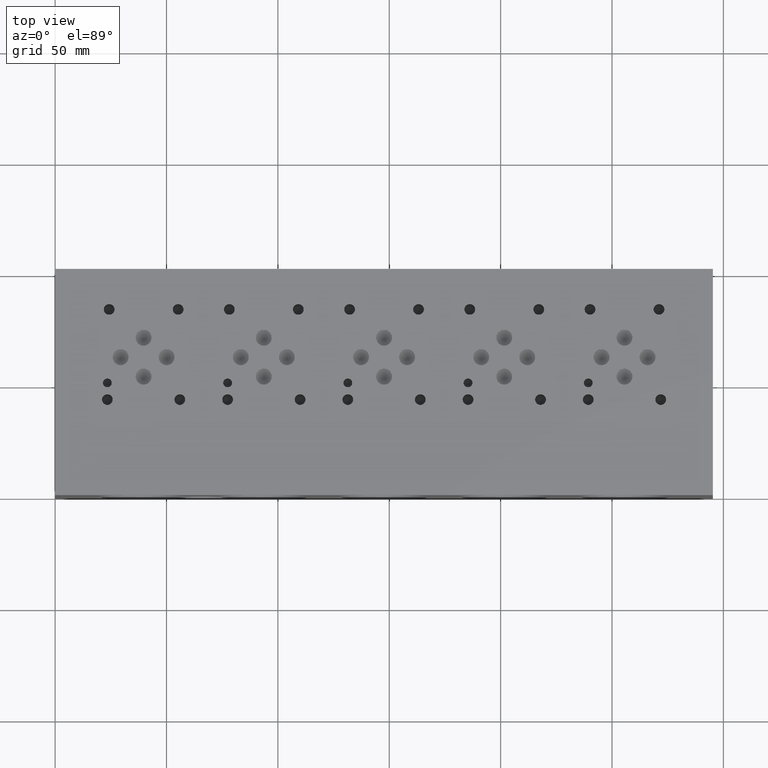
[diagram: clean part render]
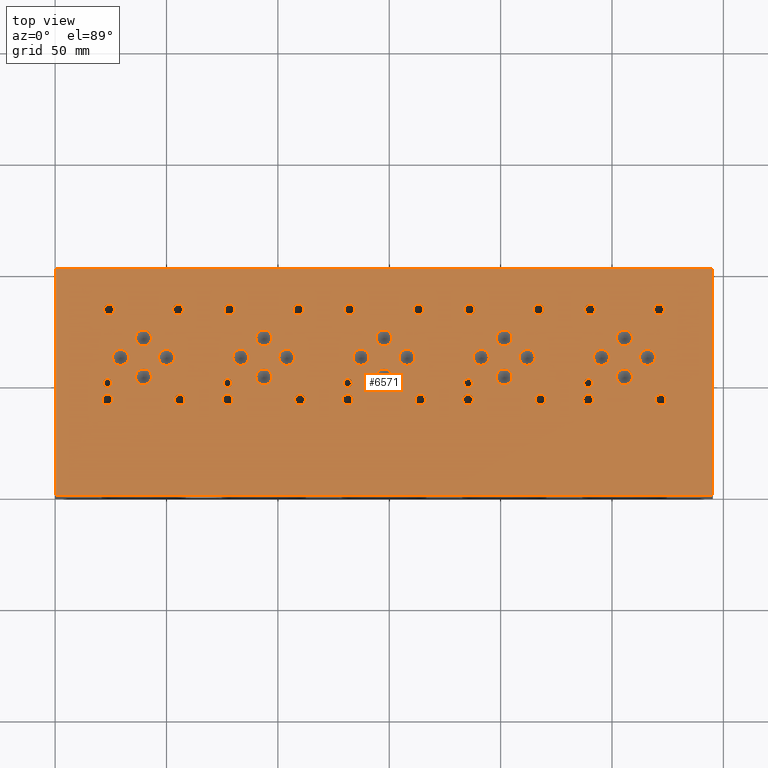
[diagram: same view with one face highlighted and labeled with its STEP entity id]
A machine part, top view. The second image highlights one B-rep face of the part: STEP entity #6571.
In plain terms, the highlighted planar face has unit normal (0, 0, 1).
Its self-contained STEP definition (entity closure, byte-faithful):
#564=CARTESIAN_POINT('',(242.51920000000001,83.337400000000002,101.59999999999999));
#565=VERTEX_POINT('',#564);
#566=CARTESIAN_POINT('',(240.10620000000003,83.337400000000002,101.59999999999999));
#567=DIRECTION('',(0.0,0.0,-1.0));
#568=DIRECTION('',(1.0,0.0,0.0));
#569=AXIS2_PLACEMENT_3D('',#566,#567,#568);
#570=CIRCLE('',#569,2.41299999999999);
#571=EDGE_CURVE('',#565,#565,#570,.T.);
#641=CARTESIAN_POINT('',(273.48180000000002,83.337400000000002,101.59999999999999));
#642=VERTEX_POINT('',#641);
#643=CARTESIAN_POINT('',(271.06880000000001,83.337400000000002,101.59999999999999));
#644=DIRECTION('',(0.0,0.0,-1.0));
#645=DIRECTION('',(1.0,0.0,0.0));
#646=AXIS2_PLACEMENT_3D('',#643,#644,#645);
#647=CIRCLE('',#646,2.41299999999999);
#648=EDGE_CURVE('',#642,#642,#647,.T.);
#718=CARTESIAN_POINT('',(274.26920000000001,42.849800000000002,101.59999999999999));
#719=VERTEX_POINT('',#718);
#720=CARTESIAN_POINT('',(271.8562,42.849800000000002,101.59999999999999));
#721=DIRECTION('',(0.0,0.0,-1.0));
#722=DIRECTION('',(1.0,0.0,0.0));
#723=AXIS2_PLACEMENT_3D('',#720,#721,#722);
#724=CIRCLE('',#723,2.41299999999999);
#725=EDGE_CURVE('',#719,#719,#724,.T.);
#795=CARTESIAN_POINT('',(241.73180000000002,42.849800000000002,101.59999999999999));
#796=VERTEX_POINT('',#795);
#797=CARTESIAN_POINT('',(239.31880000000004,42.849800000000002,101.59999999999999));
#798=DIRECTION('',(0.0,0.0,-1.0));
#799=DIRECTION('',(1.0,0.0,0.0));
#800=AXIS2_PLACEMENT_3D('',#797,#798,#799);
#801=CIRCLE('',#800,2.41299999999999);
#802=EDGE_CURVE('',#796,#796,#801,.T.);
#832=CARTESIAN_POINT('',(241.30000000000001,50.342799999999997,101.59999999999999));
#833=VERTEX_POINT('',#832);
#834=CARTESIAN_POINT('',(239.31880000000004,50.342799999999997,101.59999999999999));
#835=DIRECTION('',(0.0,0.0,-1.0));
#836=DIRECTION('',(1.0,0.0,0.0));
#837=AXIS2_PLACEMENT_3D('',#834,#835,#836);
#838=CIRCLE('',#837,1.981199999999994);
#839=EDGE_CURVE('',#833,#833,#838,.T.);
#869=CARTESIAN_POINT('',(259.14350000000002,53.162200000000006,101.59999999999999));
#870=VERTEX_POINT('',#869);
#871=CARTESIAN_POINT('',(255.57480000000001,53.162200000000006,101.59999999999999));
#872=DIRECTION('',(0.0,0.0,-1.0));
#873=DIRECTION('',(1.0,0.0,0.0));
#874=AXIS2_PLACEMENT_3D('',#871,#872,#873);
#875=CIRCLE('',#874,3.568700000000007);
#876=EDGE_CURVE('',#870,#870,#875,.T.);
#906=CARTESIAN_POINT('',(259.14350000000002,70.6374,101.59999999999999));
#907=VERTEX_POINT('',#906);
#908=CARTESIAN_POINT('',(255.57480000000001,70.6374,101.59999999999999));
#909=DIRECTION('',(0.0,0.0,-1.0));
#910=DIRECTION('',(1.0,0.0,0.0));
#911=AXIS2_PLACEMENT_3D('',#908,#909,#910);
#912=CIRCLE('',#911,3.568700000000007);
#913=EDGE_CURVE('',#907,#907,#912,.T.);
#943=CARTESIAN_POINT('',(269.48130000000003,61.899799999999999,101.59999999999999));
#944=VERTEX_POINT('',#943);
#945=CARTESIAN_POINT('',(265.9126,61.899799999999999,101.59999999999999));
#946=DIRECTION('',(0.0,0.0,-1.0));
#947=DIRECTION('',(1.0,0.0,0.0));
#948=AXIS2_PLACEMENT_3D('',#945,#946,#947);
#949=CIRCLE('',#948,3.568700000000007);
#950=EDGE_CURVE('',#944,#944,#949,.T.);
#980=CARTESIAN_POINT('',(248.83110000000002,61.899799999999999,101.59999999999999));
#981=VERTEX_POINT('',#980);
#982=CARTESIAN_POINT('',(245.26240000000001,61.899799999999999,101.59999999999999));
#983=DIRECTION('',(0.0,0.0,-1.0));
#984=DIRECTION('',(1.0,0.0,0.0));
#985=AXIS2_PLACEMENT_3D('',#982,#983,#984);
#986=CIRCLE('',#985,3.568700000000007);
#987=EDGE_CURVE('',#981,#981,#986,.T.);
#1491=CARTESIAN_POINT('',(188.54420000000002,83.337400000000002,101.59999999999999));
#1492=VERTEX_POINT('',#1491);
#1493=CARTESIAN_POINT('',(186.13120000000004,83.337400000000002,101.59999999999999));
#1494=DIRECTION('',(0.0,0.0,-1.0));
#1495=DIRECTION('',(1.0,0.0,0.0));
#1496=AXIS2_PLACEMENT_3D('',#1493,#1494,#1495);
#1497=CIRCLE('',#1496,2.41299999999999);
#1498=EDGE_CURVE('',#1492,#1492,#1497,.T.);
#1568=CARTESIAN_POINT('',(219.5068,83.337400000000002,101.59999999999999));
#1569=VERTEX_POINT('',#1568);
#1570=CARTESIAN_POINT('',(217.09379999999999,83.337400000000002,101.59999999999999));
#1571=DIRECTION('',(0.0,0.0,-1.0));
#1572=DIRECTION('',(1.0,0.0,0.0));
#1573=AXIS2_PLACEMENT_3D('',#1570,#1571,#1572);
#1574=CIRCLE('',#1573,2.41299999999999);
#1575=EDGE_CURVE('',#1569,#1569,#1574,.T.);
#1645=CARTESIAN_POINT('',(220.29420000000002,42.849800000000002,101.59999999999999));
#1646=VERTEX_POINT('',#1645);
#1647=CARTESIAN_POINT('',(217.88120000000004,42.849800000000002,101.59999999999999));
#1648=DIRECTION('',(0.0,0.0,-1.0));
#1649=DIRECTION('',(1.0,0.0,0.0));
#1650=AXIS2_PLACEMENT_3D('',#1647,#1648,#1649);
#1651=CIRCLE('',#1650,2.41299999999999);
#1652=EDGE_CURVE('',#1646,#1646,#1651,.T.);
#1722=CARTESIAN_POINT('',(187.75679999999997,42.849800000000002,101.59999999999999));
#1723=VERTEX_POINT('',#1722);
#1724=CARTESIAN_POINT('',(185.34379999999999,42.849800000000002,101.59999999999999));
#1725=DIRECTION('',(0.0,0.0,-1.0));
#1726=DIRECTION('',(1.0,0.0,0.0));
#1727=AXIS2_PLACEMENT_3D('',#1724,#1725,#1726);
#1728=CIRCLE('',#1727,2.41299999999999);
#1729=EDGE_CURVE('',#1723,#1723,#1728,.T.);
#1759=CARTESIAN_POINT('',(187.32499999999999,50.342799999999997,101.59999999999999));
#1760=VERTEX_POINT('',#1759);
#1761=CARTESIAN_POINT('',(185.34379999999999,50.342799999999997,101.59999999999999));
#1762=DIRECTION('',(0.0,0.0,-1.0));
#1763=DIRECTION('',(1.0,0.0,0.0));
#1764=AXIS2_PLACEMENT_3D('',#1761,#1762,#1763);
#1765=CIRCLE('',#1764,1.981199999999994);
#1766=EDGE_CURVE('',#1760,#1760,#1765,.T.);
#1796=CARTESIAN_POINT('',(205.16850000000002,53.162200000000006,101.59999999999999));
#1797=VERTEX_POINT('',#1796);
#1798=CARTESIAN_POINT('',(201.59980000000002,53.162200000000006,101.59999999999999));
#1799=DIRECTION('',(0.0,0.0,-1.0));
#1800=DIRECTION('',(1.0,0.0,0.0));
#1801=AXIS2_PLACEMENT_3D('',#1798,#1799,#1800);
#1802=CIRCLE('',#1801,3.568700000000007);
#1803=EDGE_CURVE('',#1797,#1797,#1802,.T.);
#1833=CARTESIAN_POINT('',(205.16850000000002,70.6374,101.59999999999999));
#1834=VERTEX_POINT('',#1833);
#1835=CARTESIAN_POINT('',(201.59980000000002,70.6374,101.59999999999999));
#1836=DIRECTION('',(0.0,0.0,-1.0));
#1837=DIRECTION('',(1.0,0.0,0.0));
#1838=AXIS2_PLACEMENT_3D('',#1835,#1836,#1837);
#1839=CIRCLE('',#1838,3.568700000000007);
#1840=EDGE_CURVE('',#1834,#1834,#1839,.T.);
#1870=CARTESIAN_POINT('',(215.50630000000001,61.899799999999999,101.59999999999999));
#1871=VERTEX_POINT('',#1870);
#1872=CARTESIAN_POINT('',(211.9376,61.899799999999999,101.59999999999999));
#1873=DIRECTION('',(0.0,0.0,-1.0));
#1874=DIRECTION('',(1.0,0.0,0.0));
#1875=AXIS2_PLACEMENT_3D('',#1872,#1873,#1874);
#1876=CIRCLE('',#1875,3.568700000000007);
#1877=EDGE_CURVE('',#1871,#1871,#1876,.T.);
#1907=CARTESIAN_POINT('',(194.85610000000003,61.899799999999999,101.59999999999999));
#1908=VERTEX_POINT('',#1907);
#1909=CARTESIAN_POINT('',(191.28739999999999,61.899799999999999,101.59999999999999));
#1910=DIRECTION('',(0.0,0.0,-1.0));
#1911=DIRECTION('',(1.0,0.0,0.0));
#1912=AXIS2_PLACEMENT_3D('',#1909,#1910,#1911);
#1913=CIRCLE('',#1912,3.568700000000007);
#1914=EDGE_CURVE('',#1908,#1908,#1913,.T.);
#2418=CARTESIAN_POINT('',(134.56920000000002,83.337400000000002,101.59999999999999));
#2419=VERTEX_POINT('',#2418);
#2420=CARTESIAN_POINT('',(132.15620000000001,83.337400000000002,101.59999999999999));
#2421=DIRECTION('',(0.0,0.0,-1.0));
#2422=DIRECTION('',(1.0,0.0,0.0));
#2423=AXIS2_PLACEMENT_3D('',#2420,#2421,#2422);
#2424=CIRCLE('',#2423,2.413000000000007);
#2425=EDGE_CURVE('',#2419,#2419,#2424,.T.);
#2495=CARTESIAN_POINT('',(165.53179999999998,83.337400000000002,101.59999999999999));
#2496=VERTEX_POINT('',#2495);
#2497=CARTESIAN_POINT('',(163.11879999999999,83.337400000000002,101.59999999999999));
#2498=DIRECTION('',(0.0,0.0,-1.0));
#2499=DIRECTION('',(1.0,0.0,0.0));
#2500=AXIS2_PLACEMENT_3D('',#2497,#2498,#2499);
#2501=CIRCLE('',#2500,2.41299999999999);
#2502=EDGE_CURVE('',#2496,#2496,#2501,.T.);
#2572=CARTESIAN_POINT('',(166.31920000000002,42.849800000000002,101.59999999999999));
#2573=VERTEX_POINT('',#2572);
#2574=CARTESIAN_POINT('',(163.90620000000001,42.849800000000002,101.59999999999999));
#2575=DIRECTION('',(0.0,0.0,-1.0));
#2576=DIRECTION('',(1.0,0.0,0.0));
#2577=AXIS2_PLACEMENT_3D('',#2574,#2575,#2576);
#2578=CIRCLE('',#2577,2.41299999999999);
#2579=EDGE_CURVE('',#2573,#2573,#2578,.T.);
#2649=CARTESIAN_POINT('',(133.7818,42.849800000000002,101.59999999999999));
#2650=VERTEX_POINT('',#2649);
#2651=CARTESIAN_POINT('',(131.36879999999999,42.849800000000002,101.59999999999999));
#2652=DIRECTION('',(0.0,0.0,-1.0));
#2653=DIRECTION('',(1.0,0.0,0.0));
#2654=AXIS2_PLACEMENT_3D('',#2651,#2652,#2653);
#2655=CIRCLE('',#2654,2.413000000000007);
#2656=EDGE_CURVE('',#2650,#2650,#2655,.T.);
#2686=CARTESIAN_POINT('',(133.34999999999999,50.342799999999997,101.59999999999999));
#2687=VERTEX_POINT('',#2686);
#2688=CARTESIAN_POINT('',(131.36879999999999,50.342799999999997,101.59999999999999));
#2689=DIRECTION('',(0.0,0.0,-1.0));
#2690=DIRECTION('',(1.0,0.0,0.0));
#2691=AXIS2_PLACEMENT_3D('',#2688,#2689,#2690);
#2692=CIRCLE('',#2691,1.981199999999994);
#2693=EDGE_CURVE('',#2687,#2687,#2692,.T.);
#2723=CARTESIAN_POINT('',(151.1935,53.162200000000006,101.59999999999999));
#2724=VERTEX_POINT('',#2723);
#2725=CARTESIAN_POINT('',(147.62479999999999,53.162200000000006,101.59999999999999));
#2726=DIRECTION('',(0.0,0.0,-1.0));
#2727=DIRECTION('',(1.0,0.0,0.0));
#2728=AXIS2_PLACEMENT_3D('',#2725,#2726,#2727);
#2729=CIRCLE('',#2728,3.568700000000007);
#2730=EDGE_CURVE('',#2724,#2724,#2729,.T.);
#2760=CARTESIAN_POINT('',(151.1935,70.6374,101.59999999999999));
#2761=VERTEX_POINT('',#2760);
#2762=CARTESIAN_POINT('',(147.62479999999999,70.6374,101.59999999999999));
#2763=DIRECTION('',(0.0,0.0,-1.0));
#2764=DIRECTION('',(1.0,0.0,0.0));
#2765=AXIS2_PLACEMENT_3D('',#2762,#2763,#2764);
#2766=CIRCLE('',#2765,3.568700000000007);
#2767=EDGE_CURVE('',#2761,#2761,#2766,.T.);
#2797=CARTESIAN_POINT('',(161.53130000000002,61.899799999999999,101.59999999999999));
#2798=VERTEX_POINT('',#2797);
#2799=CARTESIAN_POINT('',(157.96260000000001,61.899799999999999,101.59999999999999));
#2800=DIRECTION('',(0.0,0.0,-1.0));
#2801=DIRECTION('',(1.0,0.0,0.0));
#2802=AXIS2_PLACEMENT_3D('',#2799,#2800,#2801);
#2803=CIRCLE('',#2802,3.568699999999989);
#2804=EDGE_CURVE('',#2798,#2798,#2803,.T.);
#2834=CARTESIAN_POINT('',(140.8811,61.899799999999999,101.59999999999999));
#2835=VERTEX_POINT('',#2834);
#2836=CARTESIAN_POINT('',(137.3124,61.899799999999999,101.59999999999999));
#2837=DIRECTION('',(0.0,0.0,-1.0));
#2838=DIRECTION('',(1.0,0.0,0.0));
#2839=AXIS2_PLACEMENT_3D('',#2836,#2837,#2838);
#2840=CIRCLE('',#2839,3.568700000000007);
#2841=EDGE_CURVE('',#2835,#2835,#2840,.T.);
#5305=CARTESIAN_POINT('',(80.594200000000015,83.337400000000002,101.59999999999999));
#5306=VERTEX_POINT('',#5305);
#5307=CARTESIAN_POINT('',(78.181200000000004,83.337400000000002,101.59999999999999));
#5308=DIRECTION('',(0.0,0.0,-1.0));
#5309=DIRECTION('',(1.0,0.0,0.0));
#5310=AXIS2_PLACEMENT_3D('',#5307,#5308,#5309);
#5311=CIRCLE('',#5310,2.413000000000007);
#5312=EDGE_CURVE('',#5306,#5306,#5311,.T.);
#5382=CARTESIAN_POINT('',(111.55680000000002,83.337400000000002,101.59999999999999));
#5383=VERTEX_POINT('',#5382);
#5384=CARTESIAN_POINT('',(109.14380000000001,83.337400000000002,101.59999999999999));
#5385=DIRECTION('',(0.0,0.0,-1.0));
#5386=DIRECTION('',(1.0,0.0,0.0));
#5387=AXIS2_PLACEMENT_3D('',#5384,#5385,#5386);
#5388=CIRCLE('',#5387,2.413000000000007);
#5389=EDGE_CURVE('',#5383,#5383,#5388,.T.);
#5459=CARTESIAN_POINT('',(112.34420000000001,42.849800000000002,101.59999999999999));
#5460=VERTEX_POINT('',#5459);
#5461=CARTESIAN_POINT('',(109.93120000000002,42.849800000000002,101.59999999999999));
#5462=DIRECTION('',(0.0,0.0,-1.0));
#5463=DIRECTION('',(1.0,0.0,0.0));
#5464=AXIS2_PLACEMENT_3D('',#5461,#5462,#5463);
#5465=CIRCLE('',#5464,2.413000000000007);
#5466=EDGE_CURVE('',#5460,#5460,#5465,.T.);
#5536=CARTESIAN_POINT('',(79.80680000000001,42.849800000000002,101.59999999999999));
#5537=VERTEX_POINT('',#5536);
#5538=CARTESIAN_POINT('',(77.393799999999999,42.849800000000002,101.59999999999999));
#5539=DIRECTION('',(0.0,0.0,-1.0));
#5540=DIRECTION('',(1.0,0.0,0.0));
#5541=AXIS2_PLACEMENT_3D('',#5538,#5539,#5540);
#5542=CIRCLE('',#5541,2.412999999999999);
#5543=EDGE_CURVE('',#5537,#5537,#5542,.T.);
#5573=CARTESIAN_POINT('',(79.375000000000014,50.342799999999997,101.59999999999999));
#5574=VERTEX_POINT('',#5573);
#5575=CARTESIAN_POINT('',(77.393799999999999,50.342799999999997,101.59999999999999));
#5576=DIRECTION('',(0.0,0.0,-1.0));
#5577=DIRECTION('',(1.0,0.0,0.0));
#5578=AXIS2_PLACEMENT_3D('',#5575,#5576,#5577);
#5579=CIRCLE('',#5578,1.981200000000003);
#5580=EDGE_CURVE('',#5574,#5574,#5579,.T.);
#5610=CARTESIAN_POINT('',(97.21850000000002,53.162200000000006,101.59999999999999));
#5611=VERTEX_POINT('',#5610);
#5612=CARTESIAN_POINT('',(93.649800000000013,53.162200000000006,101.59999999999999));
#5613=DIRECTION('',(0.0,0.0,-1.0));
#5614=DIRECTION('',(1.0,0.0,0.0));
#5615=AXIS2_PLACEMENT_3D('',#5612,#5613,#5614);
#5616=CIRCLE('',#5615,3.568700000000007);
#5617=EDGE_CURVE('',#5611,#5611,#5616,.T.);
#5647=CARTESIAN_POINT('',(97.21850000000002,70.6374,101.59999999999999));
#5648=VERTEX_POINT('',#5647);
#5649=CARTESIAN_POINT('',(93.649800000000013,70.6374,101.59999999999999));
#5650=DIRECTION('',(0.0,0.0,-1.0));
#5651=DIRECTION('',(1.0,0.0,0.0));
#5652=AXIS2_PLACEMENT_3D('',#5649,#5650,#5651);
#5653=CIRCLE('',#5652,3.568700000000007);
#5654=EDGE_CURVE('',#5648,#5648,#5653,.T.);
#5684=CARTESIAN_POINT('',(107.55630000000002,61.899799999999999,101.59999999999999));
#5685=VERTEX_POINT('',#5684);
#5686=CARTESIAN_POINT('',(103.98760000000001,61.899799999999999,101.59999999999999));
#5687=DIRECTION('',(0.0,0.0,-1.0));
#5688=DIRECTION('',(1.0,0.0,0.0));
#5689=AXIS2_PLACEMENT_3D('',#5686,#5687,#5688);
#5690=CIRCLE('',#5689,3.568700000000007);
#5691=EDGE_CURVE('',#5685,#5685,#5690,.T.);
#5721=CARTESIAN_POINT('',(86.906100000000009,61.899799999999999,101.59999999999999));
#5722=VERTEX_POINT('',#5721);
#5723=CARTESIAN_POINT('',(83.337400000000002,61.899799999999999,101.59999999999999));
#5724=DIRECTION('',(0.0,0.0,-1.0));
#5725=DIRECTION('',(1.0,0.0,0.0));
#5726=AXIS2_PLACEMENT_3D('',#5723,#5724,#5725);
#5727=CIRCLE('',#5726,3.568700000000007);
#5728=EDGE_CURVE('',#5722,#5722,#5727,.T.);
#5798=CARTESIAN_POINT('',(26.619199999999999,83.337400000000002,101.59999999999999));
#5799=VERTEX_POINT('',#5798);
#5800=CARTESIAN_POINT('',(24.206199999999999,83.337400000000002,101.59999999999999));
#5801=DIRECTION('',(0.0,0.0,-1.0));
#5802=DIRECTION('',(1.0,0.0,0.0));
#5803=AXIS2_PLACEMENT_3D('',#5800,#5801,#5802);
#5804=CIRCLE('',#5803,2.412999999999999);
#5805=EDGE_CURVE('',#5799,#5799,#5804,.T.);
#5875=CARTESIAN_POINT('',(57.581800000000001,83.337400000000002,101.59999999999999));
#5876=VERTEX_POINT('',#5875);
#5877=CARTESIAN_POINT('',(55.168800000000005,83.337400000000002,101.59999999999999));
#5878=DIRECTION('',(0.0,0.0,-1.0));
#5879=DIRECTION('',(1.0,0.0,0.0));
#5880=AXIS2_PLACEMENT_3D('',#5877,#5878,#5879);
#5881=CIRCLE('',#5880,2.412999999999999);
#5882=EDGE_CURVE('',#5876,#5876,#5881,.T.);
#5952=CARTESIAN_POINT('',(58.369199999999999,42.849800000000002,101.59999999999999));
#5953=VERTEX_POINT('',#5952);
#5954=CARTESIAN_POINT('',(55.956200000000003,42.849800000000002,101.59999999999999));
#5955=DIRECTION('',(0.0,0.0,-1.0));
#5956=DIRECTION('',(1.0,0.0,0.0));
#5957=AXIS2_PLACEMENT_3D('',#5954,#5955,#5956);
#5958=CIRCLE('',#5957,2.412999999999999);
#5959=EDGE_CURVE('',#5953,#5953,#5958,.T.);
#6029=CARTESIAN_POINT('',(25.831800000000001,42.849800000000002,101.59999999999999));
#6030=VERTEX_POINT('',#6029);
#6031=CARTESIAN_POINT('',(23.418800000000001,42.849800000000002,101.59999999999999));
#6032=DIRECTION('',(0.0,0.0,-1.0));
#6033=DIRECTION('',(1.0,0.0,0.0));
#6034=AXIS2_PLACEMENT_3D('',#6031,#6032,#6033);
#6035=CIRCLE('',#6034,2.412999999999999);
#6036=EDGE_CURVE('',#6030,#6030,#6035,.T.);
#6066=CARTESIAN_POINT('',(25.399999999999999,50.342799999999997,101.59999999999999));
#6067=VERTEX_POINT('',#6066);
#6068=CARTESIAN_POINT('',(23.418800000000001,50.342799999999997,101.59999999999999));
#6069=DIRECTION('',(0.0,0.0,-1.0));
#6070=DIRECTION('',(1.0,0.0,0.0));
#6071=AXIS2_PLACEMENT_3D('',#6068,#6069,#6070);
#6072=CIRCLE('',#6071,1.981199999999999);
#6073=EDGE_CURVE('',#6067,#6067,#6072,.T.);
#6103=CARTESIAN_POINT('',(43.243499999999997,53.162200000000006,101.59999999999999));
#6104=VERTEX_POINT('',#6103);
#6105=CARTESIAN_POINT('',(39.674800000000005,53.162200000000006,101.59999999999999));
#6106=DIRECTION('',(0.0,0.0,-1.0));
#6107=DIRECTION('',(1.0,0.0,0.0));
#6108=AXIS2_PLACEMENT_3D('',#6105,#6106,#6107);
#6109=CIRCLE('',#6108,3.568699999999998);
#6110=EDGE_CURVE('',#6104,#6104,#6109,.T.);
#6140=CARTESIAN_POINT('',(43.243499999999997,70.6374,101.59999999999999));
#6141=VERTEX_POINT('',#6140);
#6142=CARTESIAN_POINT('',(39.674800000000005,70.6374,101.59999999999999));
#6143=DIRECTION('',(0.0,0.0,-1.0));
#6144=DIRECTION('',(1.0,0.0,0.0));
#6145=AXIS2_PLACEMENT_3D('',#6142,#6143,#6144);
#6146=CIRCLE('',#6145,3.568699999999998);
#6147=EDGE_CURVE('',#6141,#6141,#6146,.T.);
#6177=CARTESIAN_POINT('',(53.581299999999999,61.899799999999999,101.59999999999999));
#6178=VERTEX_POINT('',#6177);
#6179=CARTESIAN_POINT('',(50.012600000000006,61.899799999999999,101.59999999999999));
#6180=DIRECTION('',(0.0,0.0,-1.0));
#6181=DIRECTION('',(1.0,0.0,0.0));
#6182=AXIS2_PLACEMENT_3D('',#6179,#6180,#6181);
#6183=CIRCLE('',#6182,3.568699999999998);
#6184=EDGE_CURVE('',#6178,#6178,#6183,.T.);
#6214=CARTESIAN_POINT('',(32.931100000000001,61.899799999999999,101.59999999999999));
#6215=VERTEX_POINT('',#6214);
#6216=CARTESIAN_POINT('',(29.362400000000001,61.899799999999999,101.59999999999999));
#6217=DIRECTION('',(0.0,0.0,-1.0));
#6218=DIRECTION('',(1.0,0.0,0.0));
#6219=AXIS2_PLACEMENT_3D('',#6216,#6217,#6218);
#6220=CIRCLE('',#6219,3.568700000000002);
#6221=EDGE_CURVE('',#6215,#6215,#6220,.T.);
#6234=CARTESIAN_POINT('',(0.0,0.0,101.59999999999999));
#6235=VERTEX_POINT('',#6234);
#6236=CARTESIAN_POINT('',(0.0,101.59999999999999,101.59999999999999));
#6237=VERTEX_POINT('',#6236);
#6238=CARTESIAN_POINT('',(0.0,0.0,101.59999999999999));
#6239=DIRECTION('',(0.0,1.0,0.0));
#6240=VECTOR('',#6239,101.59999999999999);
#6241=LINE('',#6238,#6240);
#6242=EDGE_CURVE('',#6235,#6237,#6241,.T.);
#6286=CARTESIAN_POINT('',(295.27499999999998,101.59999999999999,101.59999999999999));
#6287=VERTEX_POINT('',#6286);
#6288=CARTESIAN_POINT('',(0.0,101.59999999999999,101.59999999999999));
#6289=DIRECTION('',(1.0,0.0,0.0));
#6290=VECTOR('',#6289,295.27499999999998);
#6291=LINE('',#6288,#6290);
#6292=EDGE_CURVE('',#6237,#6287,#6291,.T.);
#6320=CARTESIAN_POINT('',(295.27499999999998,0.0,101.59999999999999));
#6321=VERTEX_POINT('',#6320);
#6322=CARTESIAN_POINT('',(295.27499999999998,101.59999999999999,101.59999999999999));
#6323=DIRECTION('',(0.0,-1.0,0.0));
#6324=VECTOR('',#6323,101.59999999999999);
#6325=LINE('',#6322,#6324);
#6326=EDGE_CURVE('',#6287,#6321,#6325,.T.);
#6363=CARTESIAN_POINT('',(295.27499999999998,0.0,101.59999999999999));
#6364=DIRECTION('',(-1.0,0.0,0.0));
#6365=VECTOR('',#6364,295.27499999999998);
#6366=LINE('',#6363,#6365);
#6367=EDGE_CURVE('',#6321,#6235,#6366,.T.);
#6425=CARTESIAN_POINT('',(147.63749999999999,50.79999999999999,101.59999999999999));
#6426=DIRECTION('',(0.0,0.0,1.0));
#6427=DIRECTION('',(1.0,0.0,0.0));
#6428=AXIS2_PLACEMENT_3D('',#6425,#6426,#6427);
#6429=PLANE('',#6428);
#6430=ORIENTED_EDGE('',*,*,#6242,.F.);
#6431=ORIENTED_EDGE('',*,*,#6367,.F.);
#6432=ORIENTED_EDGE('',*,*,#6326,.F.);
#6433=ORIENTED_EDGE('',*,*,#6292,.F.);
#6434=EDGE_LOOP('',(#6430,#6431,#6432,#6433));
#6435=FACE_OUTER_BOUND('',#6434,.T.);
#6436=ORIENTED_EDGE('',*,*,#571,.T.);
#6437=EDGE_LOOP('',(#6436));
#6438=FACE_BOUND('',#6437,.T.);
#6439=ORIENTED_EDGE('',*,*,#648,.T.);
#6440=EDGE_LOOP('',(#6439));
#6441=FACE_BOUND('',#6440,.T.);
#6442=ORIENTED_EDGE('',*,*,#725,.T.);
#6443=EDGE_LOOP('',(#6442));
#6444=FACE_BOUND('',#6443,.T.);
#6445=ORIENTED_EDGE('',*,*,#802,.T.);
#6446=EDGE_LOOP('',(#6445));
#6447=FACE_BOUND('',#6446,.T.);
#6448=ORIENTED_EDGE('',*,*,#839,.T.);
#6449=EDGE_LOOP('',(#6448));
#6450=FACE_BOUND('',#6449,.T.);
#6451=ORIENTED_EDGE('',*,*,#876,.T.);
#6452=EDGE_LOOP('',(#6451));
#6453=FACE_BOUND('',#6452,.T.);
#6454=ORIENTED_EDGE('',*,*,#913,.T.);
#6455=EDGE_LOOP('',(#6454));
#6456=FACE_BOUND('',#6455,.T.);
#6457=ORIENTED_EDGE('',*,*,#950,.T.);
#6458=EDGE_LOOP('',(#6457));
#6459=FACE_BOUND('',#6458,.T.);
#6460=ORIENTED_EDGE('',*,*,#987,.T.);
#6461=EDGE_LOOP('',(#6460));
#6462=FACE_BOUND('',#6461,.T.);
#6463=ORIENTED_EDGE('',*,*,#1498,.T.);
#6464=EDGE_LOOP('',(#6463));
#6465=FACE_BOUND('',#6464,.T.);
#6466=ORIENTED_EDGE('',*,*,#1575,.T.);
#6467=EDGE_LOOP('',(#6466));
#6468=FACE_BOUND('',#6467,.T.);
#6469=ORIENTED_EDGE('',*,*,#1652,.T.);
#6470=EDGE_LOOP('',(#6469));
#6471=FACE_BOUND('',#6470,.T.);
#6472=ORIENTED_EDGE('',*,*,#1729,.T.);
#6473=EDGE_LOOP('',(#6472));
#6474=FACE_BOUND('',#6473,.T.);
#6475=ORIENTED_EDGE('',*,*,#1766,.T.);
#6476=EDGE_LOOP('',(#6475));
#6477=FACE_BOUND('',#6476,.T.);
#6478=ORIENTED_EDGE('',*,*,#1803,.T.);
#6479=EDGE_LOOP('',(#6478));
#6480=FACE_BOUND('',#6479,.T.);
#6481=ORIENTED_EDGE('',*,*,#1840,.T.);
#6482=EDGE_LOOP('',(#6481));
#6483=FACE_BOUND('',#6482,.T.);
#6484=ORIENTED_EDGE('',*,*,#1877,.T.);
#6485=EDGE_LOOP('',(#6484));
#6486=FACE_BOUND('',#6485,.T.);
#6487=ORIENTED_EDGE('',*,*,#1914,.T.);
#6488=EDGE_LOOP('',(#6487));
#6489=FACE_BOUND('',#6488,.T.);
#6490=ORIENTED_EDGE('',*,*,#2425,.T.);
#6491=EDGE_LOOP('',(#6490));
#6492=FACE_BOUND('',#6491,.T.);
#6493=ORIENTED_EDGE('',*,*,#2502,.T.);
#6494=EDGE_LOOP('',(#6493));
#6495=FACE_BOUND('',#6494,.T.);
#6496=ORIENTED_EDGE('',*,*,#2579,.T.);
#6497=EDGE_LOOP('',(#6496));
#6498=FACE_BOUND('',#6497,.T.);
#6499=ORIENTED_EDGE('',*,*,#2656,.T.);
#6500=EDGE_LOOP('',(#6499));
#6501=FACE_BOUND('',#6500,.T.);
#6502=ORIENTED_EDGE('',*,*,#2693,.T.);
#6503=EDGE_LOOP('',(#6502));
#6504=FACE_BOUND('',#6503,.T.);
#6505=ORIENTED_EDGE('',*,*,#2730,.T.);
#6506=EDGE_LOOP('',(#6505));
#6507=FACE_BOUND('',#6506,.T.);
#6508=ORIENTED_EDGE('',*,*,#2767,.T.);
#6509=EDGE_LOOP('',(#6508));
#6510=FACE_BOUND('',#6509,.T.);
#6511=ORIENTED_EDGE('',*,*,#2804,.T.);
#6512=EDGE_LOOP('',(#6511));
#6513=FACE_BOUND('',#6512,.T.);
#6514=ORIENTED_EDGE('',*,*,#2841,.T.);
#6515=EDGE_LOOP('',(#6514));
#6516=FACE_BOUND('',#6515,.T.);
#6517=ORIENTED_EDGE('',*,*,#5312,.T.);
#6518=EDGE_LOOP('',(#6517));
#6519=FACE_BOUND('',#6518,.T.);
#6520=ORIENTED_EDGE('',*,*,#5389,.T.);
#6521=EDGE_LOOP('',(#6520));
#6522=FACE_BOUND('',#6521,.T.);
#6523=ORIENTED_EDGE('',*,*,#5466,.T.);
#6524=EDGE_LOOP('',(#6523));
#6525=FACE_BOUND('',#6524,.T.);
#6526=ORIENTED_EDGE('',*,*,#5543,.T.);
#6527=EDGE_LOOP('',(#6526));
#6528=FACE_BOUND('',#6527,.T.);
#6529=ORIENTED_EDGE('',*,*,#5580,.T.);
#6530=EDGE_LOOP('',(#6529));
#6531=FACE_BOUND('',#6530,.T.);
#6532=ORIENTED_EDGE('',*,*,#5617,.T.);
#6533=EDGE_LOOP('',(#6532));
#6534=FACE_BOUND('',#6533,.T.);
#6535=ORIENTED_EDGE('',*,*,#5654,.T.);
#6536=EDGE_LOOP('',(#6535));
#6537=FACE_BOUND('',#6536,.T.);
#6538=ORIENTED_EDGE('',*,*,#5691,.T.);
#6539=EDGE_LOOP('',(#6538));
#6540=FACE_BOUND('',#6539,.T.);
#6541=ORIENTED_EDGE('',*,*,#5728,.T.);
#6542=EDGE_LOOP('',(#6541));
#6543=FACE_BOUND('',#6542,.T.);
#6544=ORIENTED_EDGE('',*,*,#5805,.T.);
#6545=EDGE_LOOP('',(#6544));
#6546=FACE_BOUND('',#6545,.T.);
#6547=ORIENTED_EDGE('',*,*,#5882,.T.);
#6548=EDGE_LOOP('',(#6547));
#6549=FACE_BOUND('',#6548,.T.);
#6550=ORIENTED_EDGE('',*,*,#5959,.T.);
#6551=EDGE_LOOP('',(#6550));
#6552=FACE_BOUND('',#6551,.T.);
#6553=ORIENTED_EDGE('',*,*,#6036,.T.);
#6554=EDGE_LOOP('',(#6553));
#6555=FACE_BOUND('',#6554,.T.);
#6556=ORIENTED_EDGE('',*,*,#6073,.T.);
#6557=EDGE_LOOP('',(#6556));
#6558=FACE_BOUND('',#6557,.T.);
#6559=ORIENTED_EDGE('',*,*,#6110,.T.);
#6560=EDGE_LOOP('',(#6559));
#6561=FACE_BOUND('',#6560,.T.);
#6562=ORIENTED_EDGE('',*,*,#6147,.T.);
#6563=EDGE_LOOP('',(#6562));
#6564=FACE_BOUND('',#6563,.T.);
#6565=ORIENTED_EDGE('',*,*,#6184,.T.);
#6566=EDGE_LOOP('',(#6565));
#6567=FACE_BOUND('',#6566,.T.);
#6568=ORIENTED_EDGE('',*,*,#6221,.T.);
#6569=EDGE_LOOP('',(#6568));
#6570=FACE_BOUND('',#6569,.T.);
#6571=ADVANCED_FACE('',(#6435,#6438,#6441,#6444,#6447,#6450,#6453,#6456,#6459,#6462,#6465,#6468,#6471,#6474,#6477,#6480,#6483,#6486,#6489,#6492,#6495,#6498,#6501,#6504,#6507,#6510,#6513,#6516,#6519,#6522,#6525,#6528,#6531,#6534,#6537,#6540,#6543,#6546,#6549,#6552,#6555,#6558,#6561,#6564,#6567,#6570),#6429,.T.);